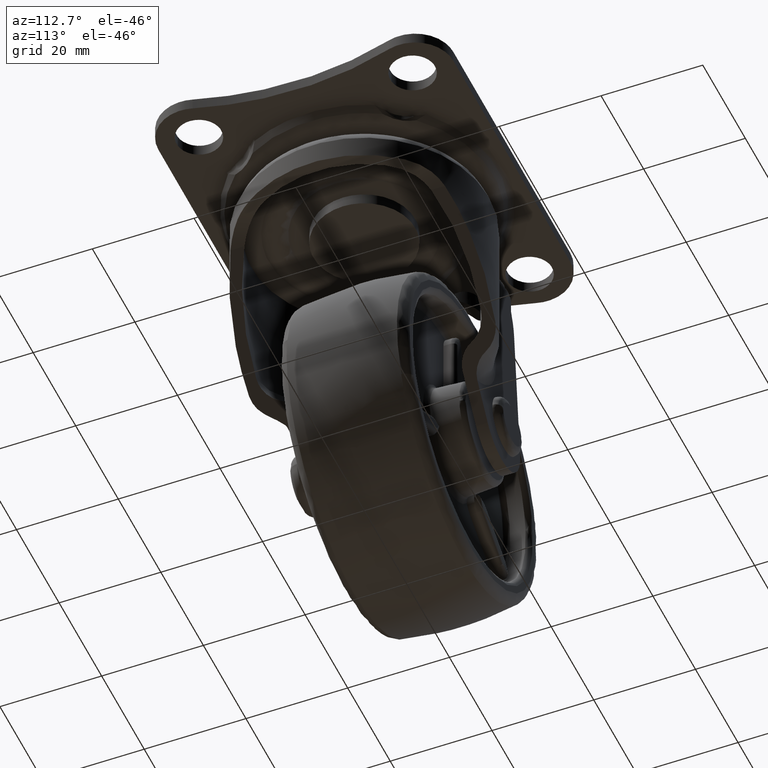
[diagram: clean part render]
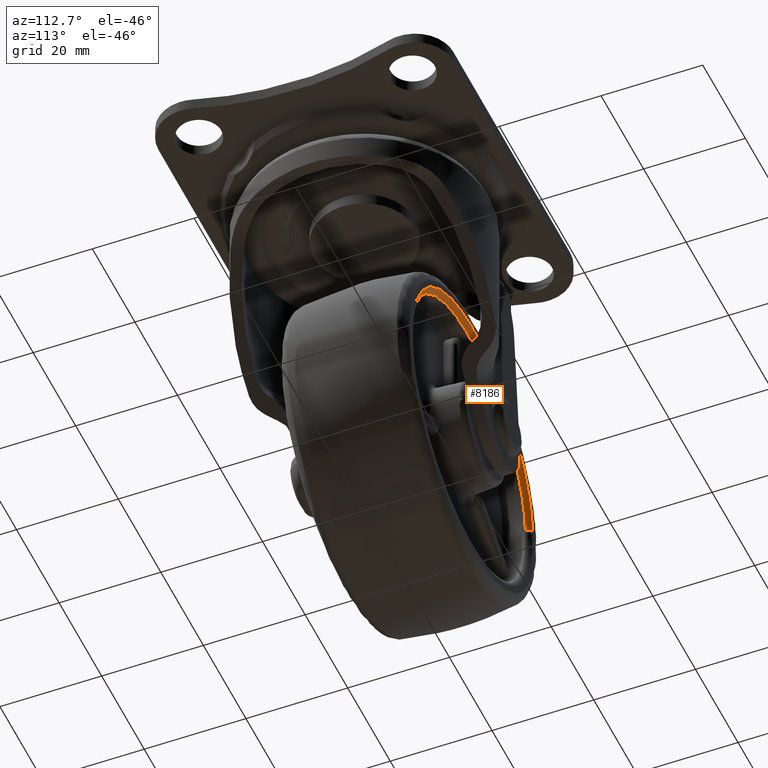
[diagram: same view with one face highlighted and labeled with its STEP entity id]
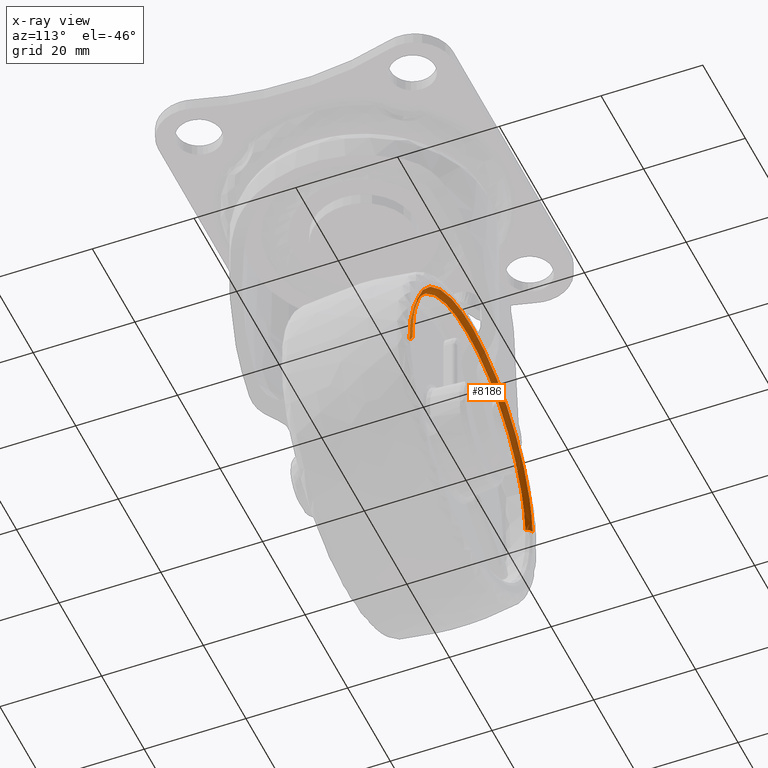
[diagram: x-ray of the same camera — body ghosted, the highlighted face saturated]
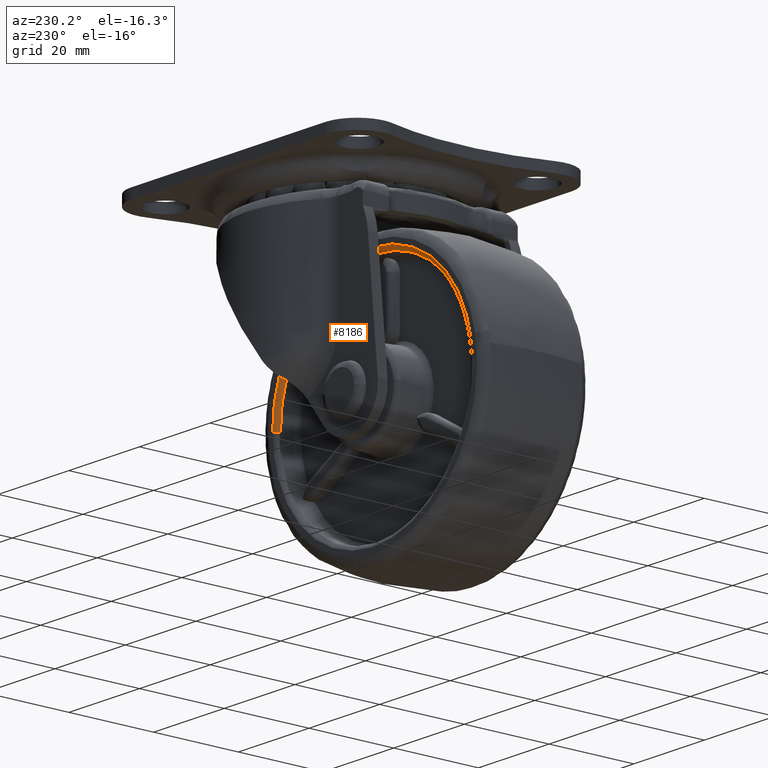
[diagram: same view with one face highlighted and labeled with its STEP entity id]
A machine part, auxiliary view. The second image highlights one B-rep face of the part: STEP entity #8186.
The next image is the same camera in x-ray: the body ghosted, the highlighted face saturated — about 45% of this face is hidden behind the body in this view.
A second angle (auxiliary view) of the same face is appended — the face is thin or edge-on in the first view.
In plain terms, the highlighted face is a freeform B-spline surface patch.
Its self-contained STEP definition (entity closure, byte-faithful):
#7037=CARTESIAN_POINT('',(19.802720477653160,11.500000000000000,18.792078306667818));
#7038=VERTEX_POINT('',#7037);
#7044=CARTESIAN_POINT('',(27.297843506843041,11.500000001744541,-0.343052876256843));
#7045=VERTEX_POINT('',#7044);
#7046=CARTESIAN_POINT('',(27.297843506843034,11.500000001744542,-0.343052876256843));
#7047=CARTESIAN_POINT('',(27.299999000000000,11.500000000000002,-0.171533209902679));
#7048=CARTESIAN_POINT('',(27.299999000000000,11.500000000000000,1.377682E-015));
#7049=CARTESIAN_POINT('',(27.299999000000007,11.500000000000000,10.891594469897779));
#7050=CARTESIAN_POINT('',(19.802720477653192,11.500000000000000,18.792078306667836));
#7058=(BOUNDED_CURVE()B_SPLINE_CURVE(2,(#7046,#7047,#7048,#7049,#7050),.UNSPECIFIED.,.F.,.U.)B_SPLINE_CURVE_WITH_KNOTS((3,2,3),(0.247784295921633,0.250000000000000,0.371049519637064),.UNSPECIFIED.)CURVE()GEOMETRIC_REPRESENTATION_ITEM()RATIONAL_B_SPLINE_CURVE((0.994854295643794,0.997404141202196,1.0,0.858181666230712,0.853699661889433))REPRESENTATION_ITEM(''));
#7059=EDGE_CURVE('',#7045,#7038,#7058,.T.);
#7076=CARTESIAN_POINT('',(-27.233541898276119,11.500000001731211,1.903717698305123));
#7077=VERTEX_POINT('',#7076);
#7093=CARTESIAN_POINT('',(-15.047305623328731,11.500000000308210,22.778686065662558));
#7094=VERTEX_POINT('',#7093);
#7095=CARTESIAN_POINT('',(-15.047305623328736,11.500000000308209,22.778686065662555));
#7096=CARTESIAN_POINT('',(-26.293635319705370,11.500000000814635,15.349506015748064));
#7097=CARTESIAN_POINT('',(-27.233541898276119,11.500000001731211,1.903717698305123));
#7105=(BOUNDED_CURVE()B_SPLINE_CURVE(2,(#7095,#7096,#7097),.UNSPECIFIED.,.F.,.U.)B_SPLINE_CURVE_WITH_KNOTS((3,3),(0.594474974312929,0.737833686534770),.UNSPECIFIED.)CURVE()GEOMETRIC_REPRESENTATION_ITEM()RATIONAL_B_SPLINE_CURVE((0.862286549675906,0.821271860530375,0.972879876386295))REPRESENTATION_ITEM(''));
#7106=EDGE_CURVE('',#7094,#7077,#7105,.T.);
#7146=CARTESIAN_POINT('',(0.0,11.500000000000000,27.299999000000000));
#7147=VERTEX_POINT('',#7146);
#7148=CARTESIAN_POINT('',(0.0,11.500000000000000,27.299999000000000));
#7149=CARTESIAN_POINT('',(-8.202919624005258,11.499999999999998,27.299998999999996));
#7150=CARTESIAN_POINT('',(-15.047305623328736,11.500000000308209,22.778686065662555));
#7158=(BOUNDED_CURVE()B_SPLINE_CURVE(2,(#7148,#7149,#7150),.UNSPECIFIED.,.F.,.U.)B_SPLINE_CURVE_WITH_KNOTS((3,3),(0.500000000000000,0.594474974312929),.UNSPECIFIED.)CURVE()GEOMETRIC_REPRESENTATION_ITEM()RATIONAL_B_SPLINE_CURVE((1.0,0.889315682704672,0.862286549675906))REPRESENTATION_ITEM(''));
#7159=EDGE_CURVE('',#7147,#7094,#7158,.T.);
#7161=CARTESIAN_POINT('',(19.802720477653192,11.500000000000000,18.792078306667836));
#7162=CARTESIAN_POINT('',(11.729005955628827,11.500000000000000,27.299998999999996));
#7163=CARTESIAN_POINT('',(0.0,11.500000000000000,27.299999000000000));
#7171=(BOUNDED_CURVE()B_SPLINE_CURVE(2,(#7161,#7162,#7163),.UNSPECIFIED.,.F.,.U.)B_SPLINE_CURVE_WITH_KNOTS((3,3),(0.371049519637064,0.500000000000000),.UNSPECIFIED.)CURVE()GEOMETRIC_REPRESENTATION_ITEM()RATIONAL_B_SPLINE_CURVE((0.853699661889433,0.848925114955835,1.0))REPRESENTATION_ITEM(''));
#7172=EDGE_CURVE('',#7038,#7147,#7171,.T.);
#8062=CARTESIAN_POINT('',(28.297764550904759,12.500000000000000,-0.355618916141846));
#8063=VERTEX_POINT('',#8062);
#8064=CARTESIAN_POINT('',(27.297843506843037,11.500000001744544,-0.343052876256843));
#8065=CARTESIAN_POINT('',(27.297843510331923,12.499999999715870,-0.343052876293332));
#8066=CARTESIAN_POINT('',(28.297764550904759,12.499999999999998,-0.355618916141846));
#8074=(BOUNDED_CURVE()B_SPLINE_CURVE(2,(#8064,#8065,#8066),.UNSPECIFIED.,.F.,.U.)B_SPLINE_CURVE_WITH_KNOTS((3,3),(-1.725134639703783,-0.274865357009560),.UNSPECIFIED.)CURVE()GEOMETRIC_REPRESENTATION_ITEM()RATIONAL_B_SPLINE_CURVE((0.883342148376433,0.624617224817874,0.883342149549099))REPRESENTATION_ITEM(''));
#8075=EDGE_CURVE('',#7045,#8063,#8074,.T.);
#8092=CARTESIAN_POINT('',(-28.231107566452138,12.500000000000000,1.973450949632821));
#8093=VERTEX_POINT('',#8092);
#8109=CARTESIAN_POINT('',(-27.233541898276119,11.500000001731207,1.903717698305123));
#8110=CARTESIAN_POINT('',(-27.233541901732114,12.499999988664214,1.903717698517768));
#8111=CARTESIAN_POINT('',(-28.231107566452131,12.499999999999998,1.973450949632821));
#8119=(BOUNDED_CURVE()B_SPLINE_CURVE(2,(#8109,#8110,#8111),.UNSPECIFIED.,.F.,.U.)B_SPLINE_CURVE_WITH_KNOTS((3,3),(-1.725134639731126,-0.274865368342979),.UNSPECIFIED.)CURVE()GEOMETRIC_REPRESENTATION_ITEM()RATIONAL_B_SPLINE_CURVE((0.863472074134330,0.610566962507635,0.863472071318325))REPRESENTATION_ITEM(''));
#8120=EDGE_CURVE('',#7077,#8093,#8119,.T.);
#8125=CARTESIAN_POINT('',(27.300263953067443,11.430462850143467,-0.343083294074941));
#8126=CARTESIAN_POINT('',(27.643347247142394,11.430462850143469,26.957180658992499));
#8127=CARTESIAN_POINT('',(0.343083294074943,11.430462850143467,27.300263953067443));
#8128=CARTESIAN_POINT('',(-25.438014880203472,11.430462850143469,27.624255841999613));
#8129=CARTESIAN_POINT('',(-27.235956643004982,11.430462850143476,1.903886497189460));
#8130=CARTESIAN_POINT('',(27.220312368602020,12.577538171698599,-0.342078539944649));
#8131=CARTESIAN_POINT('',(27.562390908546679,12.577538171698601,26.878233828657372));
#8132=CARTESIAN_POINT('',(0.342078539944651,12.577538171698599,27.220312368602020));
#8133=CARTESIAN_POINT('',(-25.363517080518328,12.577538171698601,27.543355414514984));
#8134=CARTESIAN_POINT('',(-27.156193389001889,12.577538171698597,1.898310773000333));
#8135=CARTESIAN_POINT('',(28.367297054283952,12.497579303833584,-0.356492733334638));
#8136=CARTESIAN_POINT('',(28.723789787618585,12.497579303833579,28.010804320949305));
#8137=CARTESIAN_POINT('',(0.356492733334640,12.497579303833584,28.367297054283952));
#8138=CARTESIAN_POINT('',(-26.432261820565557,12.497579303833579,28.703952193308144));
#8139=CARTESIAN_POINT('',(-28.300476287626161,12.497579303833581,1.978300060258033));
#8147=(BOUNDED_SURFACE()B_SPLINE_SURFACE(2,2,((#8125,#8130,#8135),(#8126,#8131,#8136),(#8127,#8132,#8137),(#8128,#8133,#8138),(#8129,#8134,#8139)),.UNSPECIFIED.,.F.,.F.,.U.)B_SPLINE_SURFACE_WITH_KNOTS((3,2,3),(3,3),(0.0,47.004187924084569,92.128208331205755),(0.0,1.822375031680278),.UNSPECIFIED.)GEOMETRIC_REPRESENTATION_ITEM()RATIONAL_B_SPLINE_SURFACE(((0.910479812032674,0.597479386313794,0.910480162901215),(0.643806449221757,0.422481725681660,0.643806697323281),(0.910479812032674,0.597479386313794,0.910480162901215),(0.654473383734194,0.429481632106946,0.654473635946399),(0.889999297768796,0.584039565977246,0.889999640744829)))REPRESENTATION_ITEM('')SURFACE());
#8148=ORIENTED_EDGE('',*,*,#7159,.T.);
#8149=ORIENTED_EDGE('',*,*,#7106,.T.);
#8150=ORIENTED_EDGE('',*,*,#8120,.T.);
#8151=CARTESIAN_POINT('',(0.0,12.500000000000000,28.299999000000000));
#8152=VERTEX_POINT('',#8151);
#8153=CARTESIAN_POINT('',(0.0,12.500000000000000,28.299999000000000));
#8154=CARTESIAN_POINT('',(-26.390791844778079,12.500000000000002,28.299998999999996));
#8155=CARTESIAN_POINT('',(-28.231107566452142,12.499999999999993,1.973450949632821));
#8163=(BOUNDED_CURVE()B_SPLINE_CURVE(2,(#8153,#8154,#8155),.UNSPECIFIED.,.F.,.U.)B_SPLINE_CURVE_WITH_KNOTS((3,3),(0.500000000000000,0.737833686532987),.UNSPECIFIED.)CURVE()GEOMETRIC_REPRESENTATION_ITEM()RATIONAL_B_SPLINE_CURVE((1.0,0.721360504036336,0.972879876382524))REPRESENTATION_ITEM(''));
#8164=EDGE_CURVE('',#8152,#8093,#8163,.T.);
#8165=ORIENTED_EDGE('',*,*,#8164,.F.);
#8166=CARTESIAN_POINT('',(28.297764550904759,12.500000000000005,-0.355618916141846));
#8167=CARTESIAN_POINT('',(28.299998999999996,12.500000000000000,-0.177816477898005));
#8168=CARTESIAN_POINT('',(28.299999000000000,12.500000000000000,1.377682E-015));
#8169=CARTESIAN_POINT('',(28.299998999999993,12.500000000000000,28.299998999999993));
#8170=CARTESIAN_POINT('',(0.0,12.500000000000000,28.299999000000000));
#8178=(BOUNDED_CURVE()B_SPLINE_CURVE(2,(#8166,#8167,#8168,#8169,#8170),.UNSPECIFIED.,.F.,.U.)B_SPLINE_CURVE_WITH_KNOTS((3,2,3),(0.247784295921594,0.250000000000000,0.500000000000000),.UNSPECIFIED.)CURVE()GEOMETRIC_REPRESENTATION_ITEM()RATIONAL_B_SPLINE_CURVE((0.994854295643704,0.997404141202150,1.0,0.707106781186548,1.0))REPRESENTATION_ITEM(''));
#8179=EDGE_CURVE('',#8063,#8152,#8178,.T.);
#8180=ORIENTED_EDGE('',*,*,#8179,.F.);
#8181=ORIENTED_EDGE('',*,*,#8075,.F.);
#8182=ORIENTED_EDGE('',*,*,#7059,.T.);
#8183=ORIENTED_EDGE('',*,*,#7172,.T.);
#8184=EDGE_LOOP('',(#8148,#8149,#8150,#8165,#8180,#8181,#8182,#8183));
#8185=FACE_OUTER_BOUND('',#8184,.T.);
#8186=ADVANCED_FACE('',(#8185),#8147,.T.);